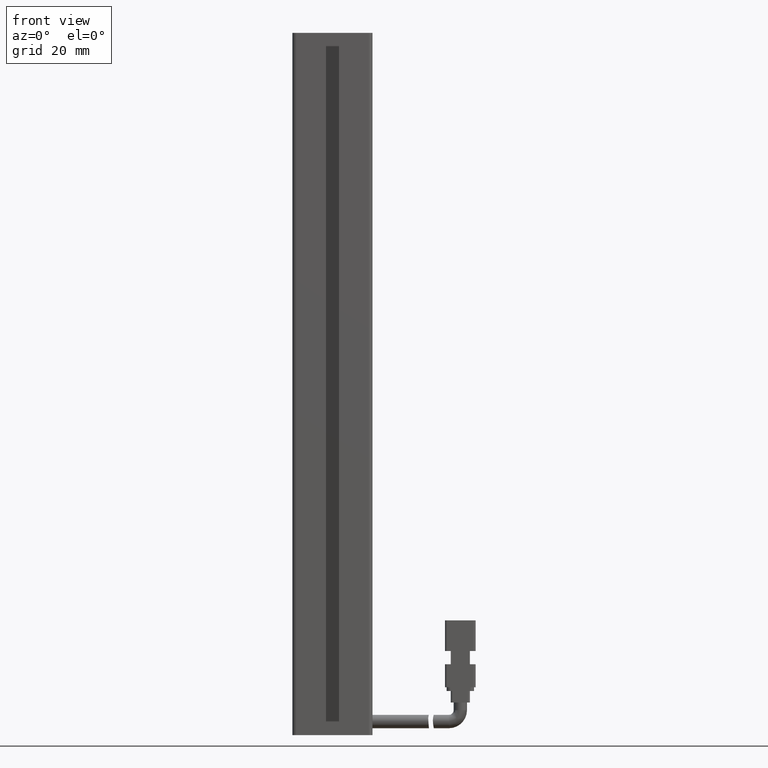
[diagram: clean part render]
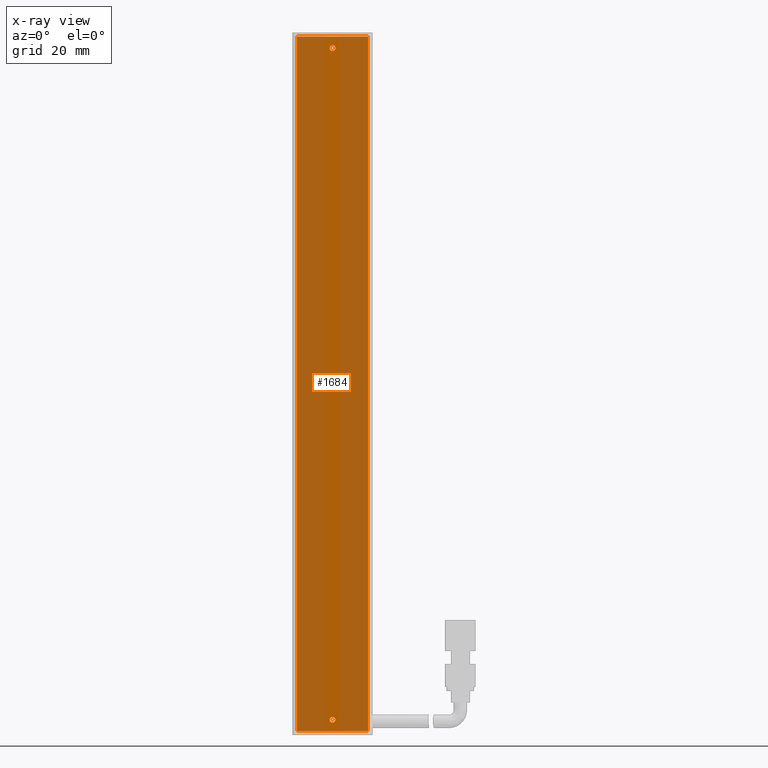
[diagram: x-ray — body ghosted, one internal face saturated and labeled with its STEP entity id]
A machine part, front view, then the same camera in x-ray: the body is ghosted and one INTERNAL B-rep face — a face not visible from any outside direction — is saturated and labeled: STEP entity #1684.
In plain terms, the highlighted planar face has unit normal (-0, 1, 0).
Its self-contained STEP definition (entity closure, byte-faithful):
#249 = CARTESIAN_POINT ( 'NONE',  ( 50.27537974683542600, 32.09073232304837100, -24.00000000000002100 ) ) ;
#635 = VERTEX_POINT ( 'NONE', #22202 ) ;
#1580 = EDGE_CURVE ( 'NONE', #19137, #635, #2741, .T. ) ;
#1684 = ADVANCED_FACE ( 'NONE', ( #34369, #33192, #9769 ), #36024, .F. ) ;
#2741 = LINE ( 'NONE', #12788, #31451 ) ;
#4807 = EDGE_LOOP ( 'NONE', ( #48060, #44213, #7795, #29494 ) ) ;
#6785 = CARTESIAN_POINT ( 'NONE',  ( 40.92537974683540400, 32.09073232304837100, -203.0000000000000000 ) ) ;
#7795 = ORIENTED_EDGE ( 'NONE', *, *, #27877, .F. ) ;
#9254 = DIRECTION ( 'NONE',  ( 0.0000000000000000000, 0.0000000000000000000, 1.000000000000000000 ) ) ;
#9769 = FACE_BOUND ( 'NONE', #17220, .T. ) ;
#10032 = ORIENTED_EDGE ( 'NONE', *, *, #15560, .F. ) ;
#10094 = CARTESIAN_POINT ( 'NONE',  ( 31.57537974683539900, 32.09073232304837100, -206.0000000000000300 ) ) ;
#10766 = CARTESIAN_POINT ( 'NONE',  ( 40.92537974683541800, 32.09073232304837100, -27.00000000000002500 ) ) ;
#11241 = CARTESIAN_POINT ( 'NONE',  ( 40.92537974683540400, 32.09073232304837100, -202.2500000000000000 ) ) ;
#11440 = AXIS2_PLACEMENT_3D ( 'NONE', #10766, #36988, #40189 ) ;
#12113 = CARTESIAN_POINT ( 'NONE',  ( 40.92537974683540400, 32.09073232304837100, -203.7500000000000300 ) ) ;
#12788 = CARTESIAN_POINT ( 'NONE',  ( 31.57537974683540600, 32.09073232304837100, -24.00000000000002100 ) ) ;
#12853 = DIRECTION ( 'NONE',  ( -0.0000000000000000000, -1.000000000000000000, -0.0000000000000000000 ) ) ;
#12855 = CIRCLE ( 'NONE', #36867, 0.7500000000000006700 ) ;
#14225 = VERTEX_POINT ( 'NONE', #11241 ) ;
#14584 = ORIENTED_EDGE ( 'NONE', *, *, #15641, .F. ) ;
#15560 = EDGE_CURVE ( 'NONE', #14225, #28482, #25670, .T. ) ;
#15641 = EDGE_CURVE ( 'NONE', #25318, #25177, #15715, .T. ) ;
#15715 = CIRCLE ( 'NONE', #28314, 0.7500000000000006700 ) ;
#15877 = CARTESIAN_POINT ( 'NONE',  ( 50.27537974683540500, 32.09073232304837100, -206.0000000000000300 ) ) ;
#16179 = ORIENTED_EDGE ( 'NONE', *, *, #41274, .F. ) ;
#16401 = DIRECTION ( 'NONE',  ( 1.548860246407863500E-017, 0.0000000000000000000, 1.000000000000000000 ) ) ;
#17220 = EDGE_LOOP ( 'NONE', ( #10032, #37164 ) ) ;
#17916 = DIRECTION ( 'NONE',  ( -0.0000000000000000000, -1.000000000000000000, -0.0000000000000000000 ) ) ;
#18856 = VECTOR ( 'NONE', #46262, 1000.000000000000000 ) ;
#19137 = VERTEX_POINT ( 'NONE', #10094 ) ;
#19445 = CARTESIAN_POINT ( 'NONE',  ( 50.27537974683542600, 32.09073232304837100, -24.00000000000002100 ) ) ;
#21020 = CARTESIAN_POINT ( 'NONE',  ( 40.92537974683541800, 32.09073232304837100, -27.00000000000002500 ) ) ;
#21571 = EDGE_CURVE ( 'NONE', #635, #41540, #44588, .T. ) ;
#22202 = CARTESIAN_POINT ( 'NONE',  ( 31.57537974683542000, 32.09073232304837100, -24.00000000000002100 ) ) ;
#24077 = CARTESIAN_POINT ( 'NONE',  ( 50.27537974683541900, 32.09073232304837100, -206.0000000000000300 ) ) ;
#24543 = AXIS2_PLACEMENT_3D ( 'NONE', #35867, #39434, #25212 ) ;
#24568 = CARTESIAN_POINT ( 'NONE',  ( 40.92537974683541800, 32.09073232304837100, -27.75000000000002500 ) ) ;
#24703 = EDGE_CURVE ( 'NONE', #28482, #14225, #12855, .T. ) ;
#25177 = VERTEX_POINT ( 'NONE', #24568 ) ;
#25212 = DIRECTION ( 'NONE',  ( 1.548860246407863500E-017, 0.0000000000000000000, 1.000000000000000000 ) ) ;
#25318 = VERTEX_POINT ( 'NONE', #40689 ) ;
#25618 = LINE ( 'NONE', #249, #34962 ) ;
#25670 = CIRCLE ( 'NONE', #48354, 0.7500000000000006700 ) ;
#26098 = CIRCLE ( 'NONE', #11440, 0.7500000000000006700 ) ;
#27877 = EDGE_CURVE ( 'NONE', #41540, #44738, #25618, .T. ) ;
#28314 = AXIS2_PLACEMENT_3D ( 'NONE', #21020, #12853, #28379 ) ;
#28379 = DIRECTION ( 'NONE',  ( 0.0000000000000000000, 0.0000000000000000000, 1.000000000000000000 ) ) ;
#28482 = VERTEX_POINT ( 'NONE', #12113 ) ;
#29494 = ORIENTED_EDGE ( 'NONE', *, *, #21571, .F. ) ;
#29866 = DIRECTION ( 'NONE',  ( -1.548860246407863500E-017, -0.0000000000000000000, -1.000000000000000000 ) ) ;
#31451 = VECTOR ( 'NONE', #16401, 1000.000000000000000 ) ;
#31496 = DIRECTION ( 'NONE',  ( -0.0000000000000000000, -1.000000000000000000, -0.0000000000000000000 ) ) ;
#31790 = LINE ( 'NONE', #24077, #37665 ) ;
#33192 = FACE_BOUND ( 'NONE', #43262, .T. ) ;
#34369 = FACE_OUTER_BOUND ( 'NONE', #4807, .T. ) ;
#34962 = VECTOR ( 'NONE', #29866, 1000.000000000000000 ) ;
#35703 = DIRECTION ( 'NONE',  ( -1.000000000000000000, -0.0000000000000000000, 1.548860246407863500E-017 ) ) ;
#35867 = CARTESIAN_POINT ( 'NONE',  ( 50.27537974683542600, 32.09073232304837100, -24.00000000000002100 ) ) ;
#36024 = PLANE ( 'NONE',  #24543 ) ;
#36867 = AXIS2_PLACEMENT_3D ( 'NONE', #6785, #17916, #44047 ) ;
#36988 = DIRECTION ( 'NONE',  ( -0.0000000000000000000, -1.000000000000000000, -0.0000000000000000000 ) ) ;
#37164 = ORIENTED_EDGE ( 'NONE', *, *, #24703, .F. ) ;
#37665 = VECTOR ( 'NONE', #35703, 1000.000000000000000 ) ;
#38850 = EDGE_CURVE ( 'NONE', #44738, #19137, #31790, .T. ) ;
#39434 = DIRECTION ( 'NONE',  ( -0.0000000000000000000, 1.000000000000000000, 0.0000000000000000000 ) ) ;
#39635 = CARTESIAN_POINT ( 'NONE',  ( 40.92537974683540400, 32.09073232304837100, -203.0000000000000000 ) ) ;
#40189 = DIRECTION ( 'NONE',  ( 0.0000000000000000000, 0.0000000000000000000, 1.000000000000000000 ) ) ;
#40689 = CARTESIAN_POINT ( 'NONE',  ( 40.92537974683541800, 32.09073232304837100, -26.25000000000002500 ) ) ;
#41274 = EDGE_CURVE ( 'NONE', #25177, #25318, #26098, .T. ) ;
#41540 = VERTEX_POINT ( 'NONE', #19445 ) ;
#43262 = EDGE_LOOP ( 'NONE', ( #14584, #16179 ) ) ;
#44047 = DIRECTION ( 'NONE',  ( 0.0000000000000000000, 0.0000000000000000000, 1.000000000000000000 ) ) ;
#44213 = ORIENTED_EDGE ( 'NONE', *, *, #38850, .F. ) ;
#44588 = LINE ( 'NONE', #46439, #18856 ) ;
#44738 = VERTEX_POINT ( 'NONE', #15877 ) ;
#46262 = DIRECTION ( 'NONE',  ( 1.000000000000000000, 0.0000000000000000000, -1.548860246407863500E-017 ) ) ;
#46439 = CARTESIAN_POINT ( 'NONE',  ( 50.27537974683542600, 32.09073232304837100, -24.00000000000002100 ) ) ;
#48060 = ORIENTED_EDGE ( 'NONE', *, *, #1580, .F. ) ;
#48354 = AXIS2_PLACEMENT_3D ( 'NONE', #39635, #31496, #9254 ) ;